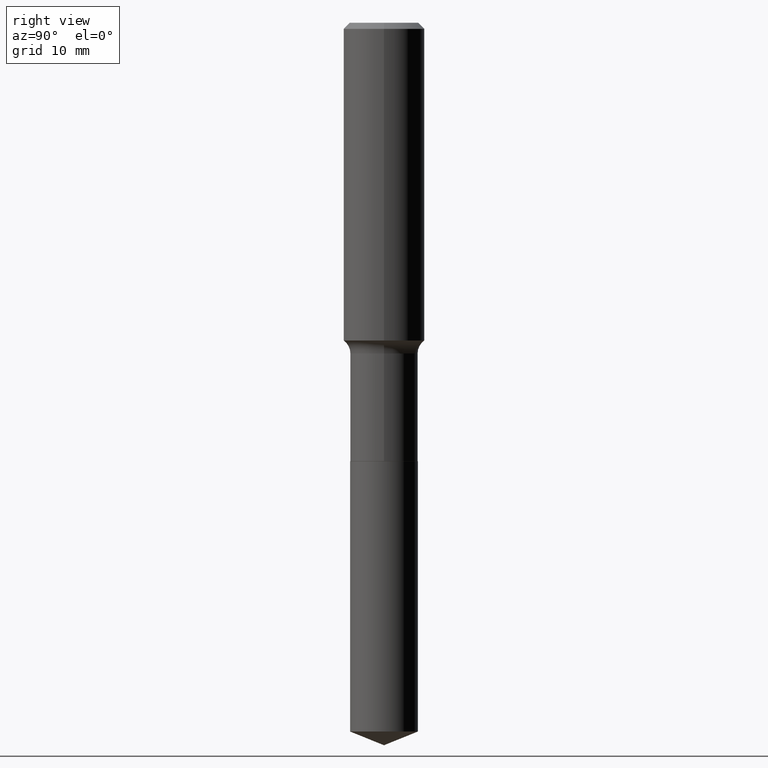
[diagram: clean part render]
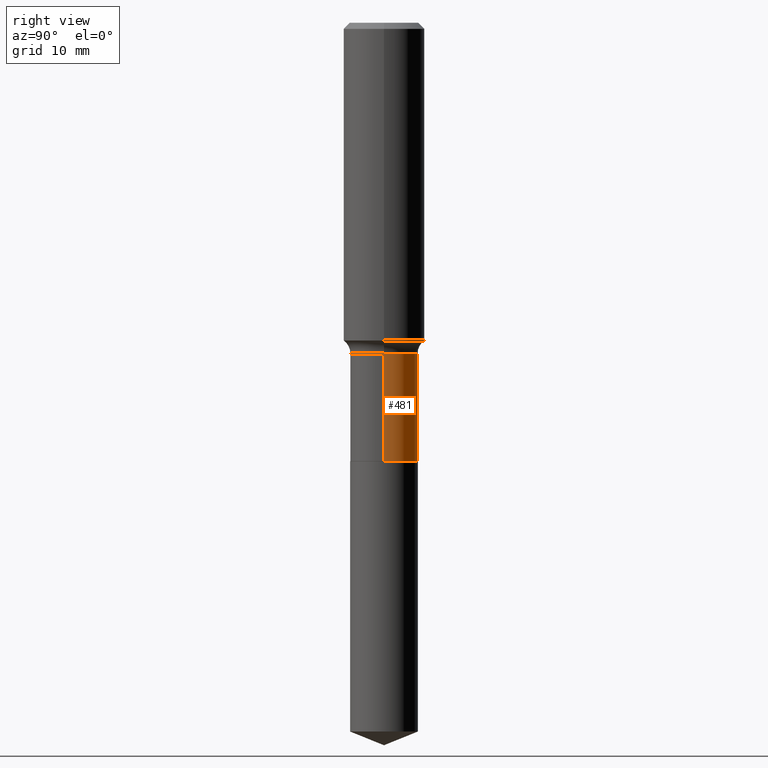
[diagram: same view with one face highlighted and labeled with its STEP entity id]
A machine part, right view. The second image highlights one B-rep face of the part: STEP entity #481.
In plain terms, the highlighted cylindrical surface (edge-blend (fillet) strip) has radius 4.1669 mm, axis along (-0, 0, 1).
Its self-contained STEP definition (entity closure, byte-faithful):
#17 = EDGE_CURVE ( 'NONE', #229, #199, #350, .T. ) ;
#27 = CARTESIAN_POINT ( 'NONE',  ( 0.000000000000000000, 0.000000000000000000, 0.000000000000000000 ) ) ;
#42 = CARTESIAN_POINT ( 'NONE',  ( -0.1640500000000000014, 1.165645358014444365E-15, -8.069513015563172164E-30 ) ) ;
#66 = FACE_OUTER_BOUND ( 'NONE', #307, .T. ) ;
#111 = EDGE_CURVE ( 'NONE', #429, #229, #460, .T. ) ;
#116 = EDGE_CURVE ( 'NONE', #313, #199, #276, .T. ) ;
#125 = AXIS2_PLACEMENT_3D ( 'NONE', #27, #323, #480 ) ;
#128 = ORIENTED_EDGE ( 'NONE', *, *, #319, .F. ) ;
#141 = CARTESIAN_POINT ( 'NONE',  ( 5.197599400665889285E-29, -7.420794437577220826E-15, -2.125399999999999956 ) ) ;
#173 = VECTOR ( 'NONE', #463, 39.37007874015748143 ) ;
#180 = ORIENTED_EDGE ( 'NONE', *, *, #111, .T. ) ;
#199 = VERTEX_POINT ( 'NONE', #227 ) ;
#202 = CARTESIAN_POINT ( 'NONE',  ( 0.1640499999999999459, -6.746938539180489683E-15, -1.604299999999999837 ) ) ;
#205 = AXIS2_PLACEMENT_3D ( 'NONE', #141, #278, #477 ) ;
#222 = CYLINDRICAL_SURFACE ( 'NONE', #125, 0.1640500000000000014 ) ;
#227 = CARTESIAN_POINT ( 'NONE',  ( -0.1640499999999999459, -5.345443616727195650E-15, -1.604299999999999837 ) ) ;
#229 = VERTEX_POINT ( 'NONE', #233 ) ;
#233 = CARTESIAN_POINT ( 'NONE',  ( -0.1640500000000000291, -5.345443616727195650E-15, -2.125399999999999956 ) ) ;
#264 = AXIS2_PLACEMENT_3D ( 'NONE', #405, #364, #402 ) ;
#276 = CIRCLE ( 'NONE', #264, 0.1640499999999999459 ) ;
#278 = DIRECTION ( 'NONE',  ( -2.445468806185136597E-29, 3.491481338843145583E-15, 1.000000000000000000 ) ) ;
#283 = ORIENTED_EDGE ( 'NONE', *, *, #17, .T. ) ;
#307 = EDGE_LOOP ( 'NONE', ( #180, #283, #367, #128 ) ) ;
#313 = VERTEX_POINT ( 'NONE', #202 ) ;
#319 = EDGE_CURVE ( 'NONE', #429, #313, #391, .T. ) ;
#323 = DIRECTION ( 'NONE',  ( -2.445468806185136597E-29, 3.491481338843145583E-15, 1.000000000000000000 ) ) ;
#350 = LINE ( 'NONE', #42, #173 ) ;
#364 = DIRECTION ( 'NONE',  ( -2.445468806185136597E-29, 3.491481338843145583E-15, 1.000000000000000000 ) ) ;
#367 = ORIENTED_EDGE ( 'NONE', *, *, #116, .F. ) ;
#369 = VECTOR ( 'NONE', #394, 39.37007874015748143 ) ;
#391 = LINE ( 'NONE', #424, #369 ) ;
#394 = DIRECTION ( 'NONE',  ( -2.445468806185136877E-29, 3.491481338843145188E-15, 1.000000000000000000 ) ) ;
#399 = CARTESIAN_POINT ( 'NONE',  ( 0.1640500000000000291, -8.566349464851653278E-15, -2.125399999999999956 ) ) ;
#402 = DIRECTION ( 'NONE',  ( 1.000000000000000000, -6.982962677686266711E-15, 0.000000000000000000 ) ) ;
#405 = CARTESIAN_POINT ( 'NONE',  ( 3.923265605762814630E-29, -5.601383511906058021E-15, -1.604299999999999837 ) ) ;
#424 = CARTESIAN_POINT ( 'NONE',  ( 0.1640500000000000014, -1.145555027274432057E-15, 7.999368000693231542E-30 ) ) ;
#429 = VERTEX_POINT ( 'NONE', #399 ) ;
#460 = CIRCLE ( 'NONE', #205, 0.1640500000000000291 ) ;
#463 = DIRECTION ( 'NONE',  ( -2.445468806185136877E-29, 3.491481338843145188E-15, 1.000000000000000000 ) ) ;
#477 = DIRECTION ( 'NONE',  ( 1.000000000000000000, -6.982962677686269077E-15, 0.000000000000000000 ) ) ;
#480 = DIRECTION ( 'NONE',  ( 1.000000000000000000, -6.982962677686266711E-15, 4.876176775795935232E-29 ) ) ;
#481 = ADVANCED_FACE ( 'NONE', ( #66 ), #222, .T. ) ;